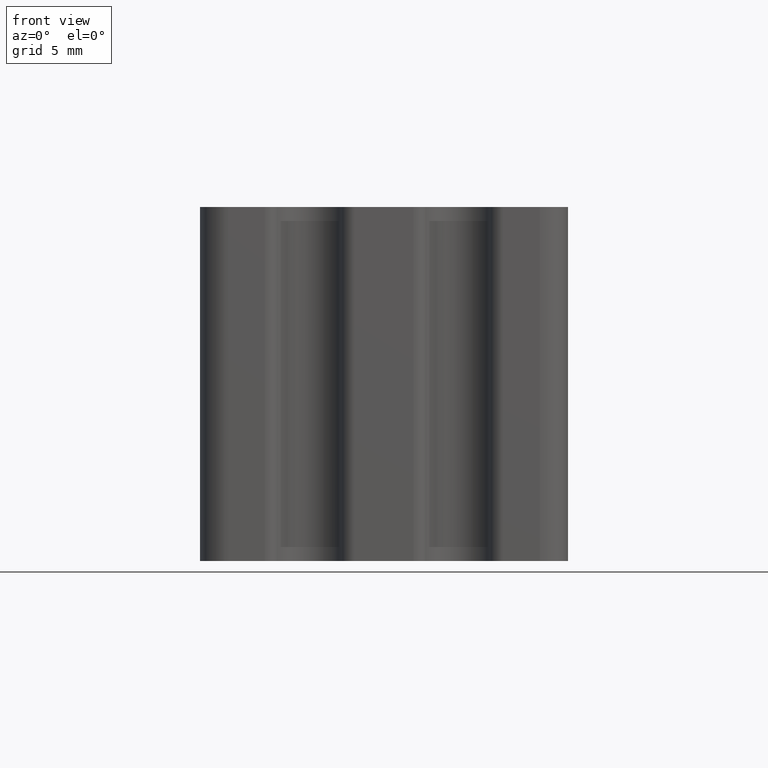
[diagram: clean part render]
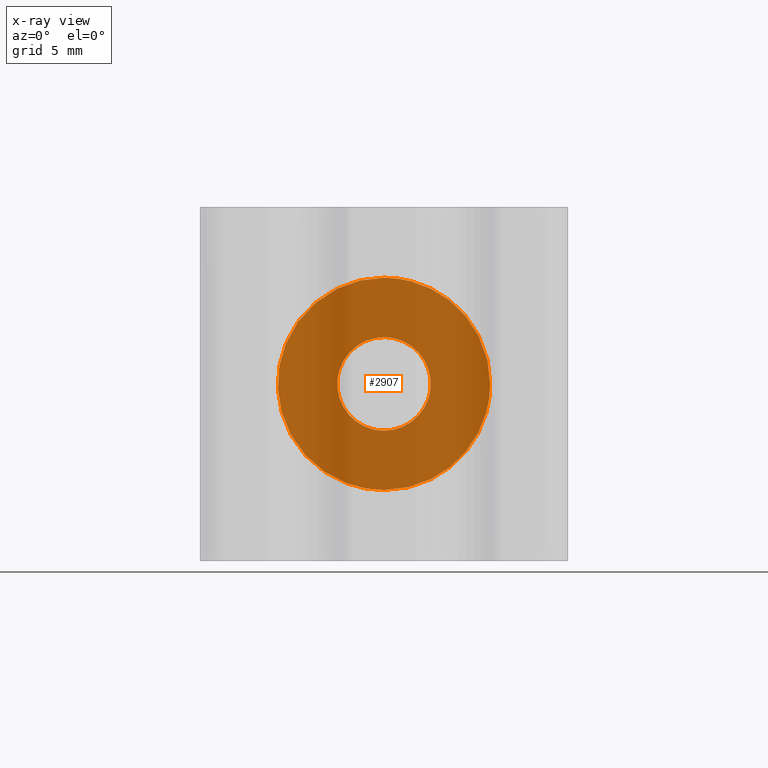
[diagram: x-ray — body ghosted, one internal face saturated and labeled with its STEP entity id]
A machine part, front view, then the same camera in x-ray: the body is ghosted and one INTERNAL B-rep face — a face not visible from any outside direction — is saturated and labeled: STEP entity #2907.
In plain terms, the highlighted face is a freeform B-spline surface patch.
Its self-contained STEP definition (entity closure, byte-faithful):
#282=CARTESIAN_POINT('',(3.289827647232477,25.700001125689599,-0.258909349913279));
#283=VERTEX_POINT('',#282);
#289=CARTESIAN_POINT('',(0.0,25.700001125689599,3.300000000000000));
#290=VERTEX_POINT('',#289);
#291=CARTESIAN_POINT('',(3.289827647232478,25.700001125689596,-0.258909349913279));
#292=CARTESIAN_POINT('',(3.300000000000000,25.700001125689596,-0.129654506984455));
#293=CARTESIAN_POINT('',(3.300000000000000,25.700001125689599,0.0));
#294=CARTESIAN_POINT('',(3.300000000000000,25.700001125689599,3.300000000000000));
#295=CARTESIAN_POINT('',(0.0,25.700001125689599,3.300000000000000));
#303=(BOUNDED_CURVE()B_SPLINE_CURVE(2,(#291,#292,#293,#294,#295),.UNSPECIFIED.,.F.,.U.)B_SPLINE_CURVE_WITH_KNOTS((3,2,3),(0.736331595873011,0.750000000000000,1.0),.UNSPECIFIED.)CURVE()GEOMETRIC_REPRESENTATION_ITEM()RATIONAL_B_SPLINE_CURVE((0.969723972316499,0.983986468476812,1.0,0.707106781186548,1.0))REPRESENTATION_ITEM(''));
#304=EDGE_CURVE('',#283,#290,#303,.T.);
#306=CARTESIAN_POINT('',(-3.289827647232477,25.700001125689599,0.258909349913278));
#307=VERTEX_POINT('',#306);
#308=CARTESIAN_POINT('',(0.0,25.700001125689599,3.300000000000000));
#309=CARTESIAN_POINT('',(-3.050493892502952,25.700001125689603,3.299999999999999));
#310=CARTESIAN_POINT('',(-3.289827647232478,25.700001125689603,0.258909349913278));
#318=(BOUNDED_CURVE()B_SPLINE_CURVE(2,(#308,#309,#310),.UNSPECIFIED.,.F.,.U.)B_SPLINE_CURVE_WITH_KNOTS((3,3),(0.0,0.236331595873011),.UNSPECIFIED.)CURVE()GEOMETRIC_REPRESENTATION_ITEM()RATIONAL_B_SPLINE_CURVE((1.0,0.723120312709735,0.969723972316499))REPRESENTATION_ITEM(''));
#319=EDGE_CURVE('',#290,#307,#318,.T.);
#369=CARTESIAN_POINT('',(0.0,25.700001125689599,-3.300000000000000));
#370=VERTEX_POINT('',#369);
#371=CARTESIAN_POINT('',(-3.289827647232478,25.700001125689603,0.258909349913278));
#372=CARTESIAN_POINT('',(-3.300000000000000,25.700001125689596,0.129654506984454));
#373=CARTESIAN_POINT('',(-3.300000000000000,25.700001125689599,0.0));
#374=CARTESIAN_POINT('',(-3.300000000000000,25.700001125689599,-3.300000000000000));
#375=CARTESIAN_POINT('',(0.0,25.700001125689599,-3.300000000000000));
#383=(BOUNDED_CURVE()B_SPLINE_CURVE(2,(#371,#372,#373,#374,#375),.UNSPECIFIED.,.F.,.U.)B_SPLINE_CURVE_WITH_KNOTS((3,2,3),(0.236331595873011,0.250000000000000,0.500000000000000),.UNSPECIFIED.)CURVE()GEOMETRIC_REPRESENTATION_ITEM()RATIONAL_B_SPLINE_CURVE((0.969723972316499,0.983986468476812,1.0,0.707106781186548,1.0))REPRESENTATION_ITEM(''));
#384=EDGE_CURVE('',#307,#370,#383,.T.);
#386=CARTESIAN_POINT('',(0.0,25.700001125689599,-3.300000000000000));
#387=CARTESIAN_POINT('',(3.050493892502951,25.700001125689603,-3.299999999999999));
#388=CARTESIAN_POINT('',(3.289827647232478,25.700001125689596,-0.258909349913279));
#396=(BOUNDED_CURVE()B_SPLINE_CURVE(2,(#386,#387,#388),.UNSPECIFIED.,.F.,.U.)B_SPLINE_CURVE_WITH_KNOTS((3,3),(0.500000000000000,0.736331595873011),.UNSPECIFIED.)CURVE()GEOMETRIC_REPRESENTATION_ITEM()RATIONAL_B_SPLINE_CURVE((1.0,0.723120312709735,0.969723972316499))REPRESENTATION_ITEM(''));
#397=EDGE_CURVE('',#370,#283,#396,.T.);
#620=CARTESIAN_POINT('',(7.499714442625750,25.699999924004050,-0.065446765127422));
#621=VERTEX_POINT('',#620);
#627=CARTESIAN_POINT('',(0.0,25.699999924004050,-7.500000000000000));
#628=VERTEX_POINT('',#627);
#629=CARTESIAN_POINT('',(0.0,25.699999924004050,-7.500000000000000));
#630=CARTESIAN_POINT('',(7.434836311183569,25.699999924004043,-7.499999999999999));
#631=CARTESIAN_POINT('',(7.499714442625750,25.699999924004043,-0.065446765127422));
#639=(BOUNDED_CURVE()B_SPLINE_CURVE(2,(#629,#630,#631),.UNSPECIFIED.,.F.,.U.)B_SPLINE_CURVE_WITH_KNOTS((3,3),(0.500000000000000,0.748460158535941),.UNSPECIFIED.)CURVE()GEOMETRIC_REPRESENTATION_ITEM()RATIONAL_B_SPLINE_CURVE((1.0,0.708910817678030,0.996414150458573))REPRESENTATION_ITEM(''));
#640=EDGE_CURVE('',#628,#621,#639,.T.);
#642=CARTESIAN_POINT('',(-1.692056018166317,25.699999924004050,7.306637149288821));
#643=VERTEX_POINT('',#642);
#644=CARTESIAN_POINT('',(-1.692056018166317,25.699999924004043,7.306637149288821));
#645=CARTESIAN_POINT('',(-7.499999999999999,25.699999924004050,5.961645415494950));
#646=CARTESIAN_POINT('',(-7.500000000000000,25.699999924004050,0.0));
#647=CARTESIAN_POINT('',(-7.500000000000000,25.699999924004054,-7.500000000000000));
#648=CARTESIAN_POINT('',(0.0,25.699999924004050,-7.500000000000000));
#656=(BOUNDED_CURVE()B_SPLINE_CURVE(2,(#644,#645,#646,#647,#648),.UNSPECIFIED.,.F.,.U.)B_SPLINE_CURVE_WITH_KNOTS((3,2,3),(0.038576931683919,0.250000000000000,0.500000000000000),.UNSPECIFIED.)CURVE()GEOMETRIC_REPRESENTATION_ITEM()RATIONAL_B_SPLINE_CURVE((0.923556713825107,0.752302467957946,1.0,0.707106781186547,1.0))REPRESENTATION_ITEM(''));
#657=EDGE_CURVE('',#643,#628,#656,.T.);
#729=CARTESIAN_POINT('',(0.0,25.699999924004050,7.500000000000000));
#730=VERTEX_POINT('',#729);
#731=CARTESIAN_POINT('',(0.0,25.699999924004050,7.500000000000000));
#732=CARTESIAN_POINT('',(-0.857076458908027,25.699999924004050,7.500000000000001));
#733=CARTESIAN_POINT('',(-1.692056018166317,25.699999924004043,7.306637149288821));
#741=(BOUNDED_CURVE()B_SPLINE_CURVE(2,(#731,#732,#733),.UNSPECIFIED.,.F.,.U.)B_SPLINE_CURVE_WITH_KNOTS((3,3),(0.0,0.038576931683919),.UNSPECIFIED.)CURVE()GEOMETRIC_REPRESENTATION_ITEM()RATIONAL_B_SPLINE_CURVE((1.0,0.954804313228601,0.923556713825107))REPRESENTATION_ITEM(''));
#742=EDGE_CURVE('',#730,#643,#741,.T.);
#744=CARTESIAN_POINT('',(7.499714442625750,25.699999924004043,-0.065446765127422));
#745=CARTESIAN_POINT('',(7.500000000000000,25.699999924004050,-0.032724005535785));
#746=CARTESIAN_POINT('',(7.500000000000000,25.699999924004050,0.0));
#747=CARTESIAN_POINT('',(7.500000000000000,25.699999924004054,7.500000000000000));
#748=CARTESIAN_POINT('',(0.0,25.699999924004050,7.500000000000000));
#756=(BOUNDED_CURVE()B_SPLINE_CURVE(2,(#744,#745,#746,#747,#748),.UNSPECIFIED.,.F.,.U.)B_SPLINE_CURVE_WITH_KNOTS((3,2,3),(0.748460158535941,0.750000000000000,1.0),.UNSPECIFIED.)CURVE()GEOMETRIC_REPRESENTATION_ITEM()RATIONAL_B_SPLINE_CURVE((0.996414150458573,0.998195963508517,1.0,0.707106781186547,1.0))REPRESENTATION_ITEM(''));
#757=EDGE_CURVE('',#621,#730,#756,.T.);
#2890=CARTESIAN_POINT('',(-8.248144812856598,25.699999924004100,8.249249970927089));
#2891=CARTESIAN_POINT('',(8.248897708927078,25.699999924004100,8.249249970927089));
#2892=CARTESIAN_POINT('',(-8.248144812856598,25.699999924004100,-8.249250373258443));
#2893=CARTESIAN_POINT('',(8.248897708927078,25.699999924004100,-8.249250373258443));
#2894=B_SPLINE_SURFACE_WITH_KNOTS('',1,1,((#2890,#2892),(#2891,#2893)),.UNSPECIFIED.,.F.,.F.,.U.,(2,2),(2,2),(0.0,16.497042521783680),(0.0,16.498500344185530),.UNSPECIFIED.);
#2895=ORIENTED_EDGE('',*,*,#742,.T.);
#2896=ORIENTED_EDGE('',*,*,#657,.T.);
#2897=ORIENTED_EDGE('',*,*,#640,.T.);
#2898=ORIENTED_EDGE('',*,*,#757,.T.);
#2899=EDGE_LOOP('',(#2895,#2896,#2897,#2898));
#2900=FACE_OUTER_BOUND('',#2899,.T.);
#2901=ORIENTED_EDGE('',*,*,#397,.F.);
#2902=ORIENTED_EDGE('',*,*,#384,.F.);
#2903=ORIENTED_EDGE('',*,*,#319,.F.);
#2904=ORIENTED_EDGE('',*,*,#304,.F.);
#2905=EDGE_LOOP('',(#2901,#2902,#2903,#2904));
#2906=FACE_BOUND('',#2905,.T.);
#2907=ADVANCED_FACE('',(#2900,#2906),#2894,.F.);